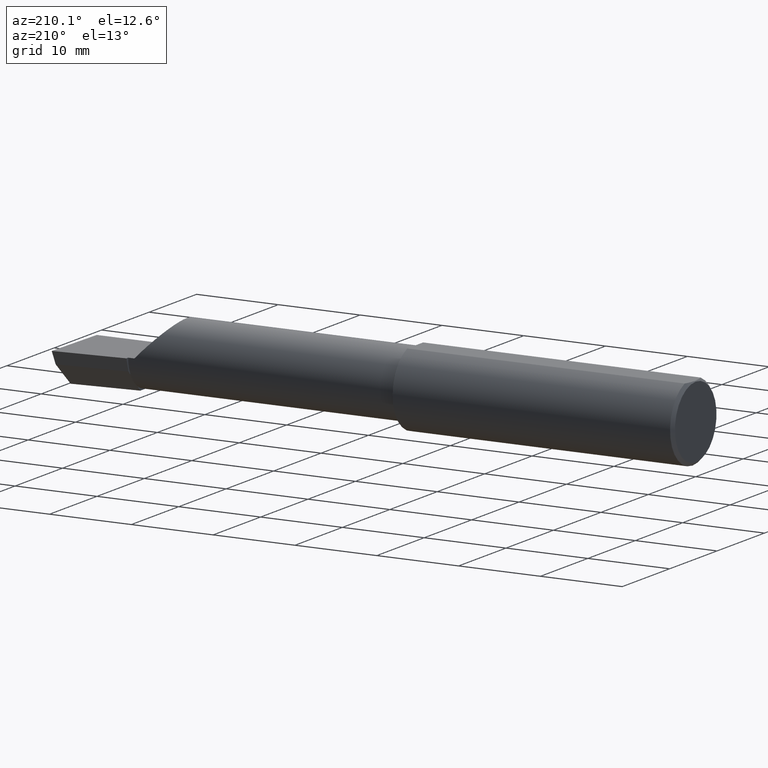
[diagram: clean part render]
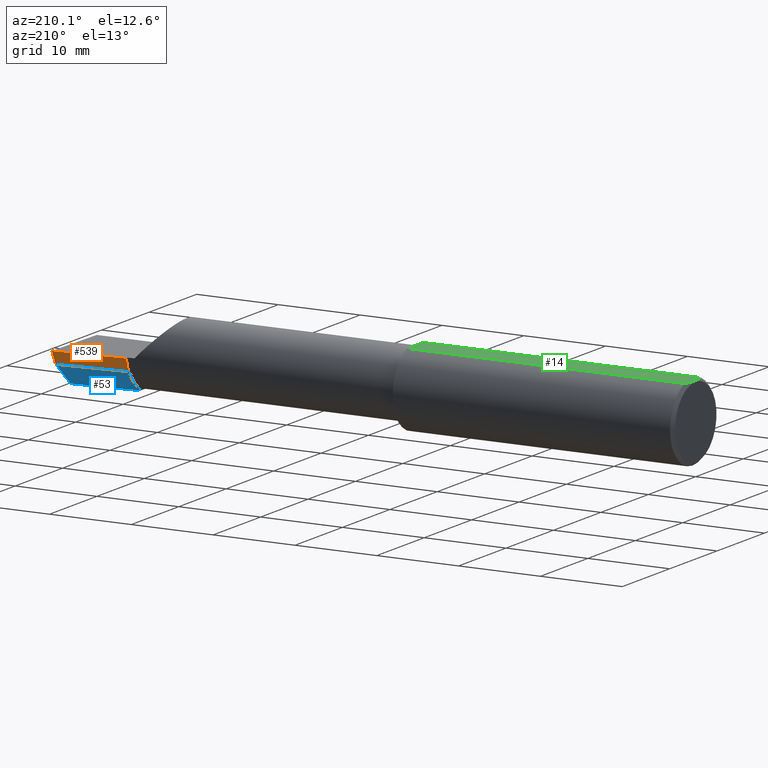
[diagram: same view with three faces highlighted in distinct colors, each labeled with its STEP entity id]
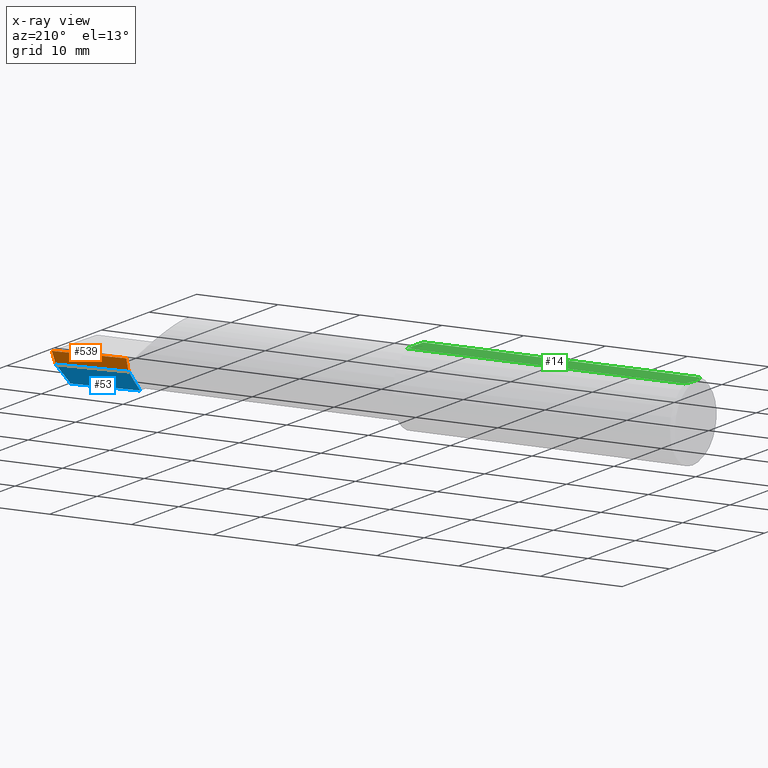
[diagram: x-ray of the same camera — body ghosted, the three highlighted faces saturated]
A machine part, auxiliary view with three faces highlighted in distinct colors.
The next image is the same camera in x-ray (body ghosted, the three faces saturated) — at least one of them is partly hidden behind the body in this view.
Their STEP definitions:

[orange] entity #539 — the highlighted planar face has unit normal (-0.0917, 0.9519, -0.2924).
#16 = LINE ( 'NONE', #605, #473 ) ;
#50 = DIRECTION ( 'NONE',  ( 0.000000000000000000, 0.2936076258024052921, 0.9559260233253797923 ) ) ;
#62 = AXIS2_PLACEMENT_3D ( 'NONE', #296, #342, #50 ) ;
#106 = CARTESIAN_POINT ( 'NONE',  ( 3.011712141217646188, 0.1533490680423130192, -0.06000000000000001166 ) ) ;
#123 = LINE ( 'NONE', #283, #625 ) ;
#131 = ORIENTED_EDGE ( 'NONE', *, *, #312, .F. ) ;
#162 = EDGE_LOOP ( 'NONE', ( #300, #520, #131, #511 ) ) ;
#164 = EDGE_CURVE ( 'NONE', #278, #395, #236, .T. ) ;
#195 = VECTOR ( 'NONE', #299, 39.37007874015748143 ) ;
#236 = LINE ( 'NONE', #386, #195 ) ;
#267 = EDGE_CURVE ( 'NONE', #278, #458, #585, .T. ) ;
#278 = VERTEX_POINT ( 'NONE', #601 ) ;
#283 = CARTESIAN_POINT ( 'NONE',  ( 0.8393181374772692438, -0.03739999999999999575, 2.375616991505620205E-16 ) ) ;
#294 = DIRECTION ( 'NONE',  ( -0.9953961983671800740, -0.09584575252021031166, 0.000000000000000000 ) ) ;
#296 = CARTESIAN_POINT ( 'NONE',  ( 3.009953961983671267, 0.1716084575252020128, -6.829619984160658046E-17 ) ) ;
#299 = DIRECTION ( 'NONE',  ( 0.1240019227989375278, 0.3022330132596638963, 0.9451342385281309433 ) ) ;
#300 = ORIENTED_EDGE ( 'NONE', *, *, #164, .F. ) ;
#312 = EDGE_CURVE ( 'NONE', #574, #458, #16, .T. ) ;
#334 = VECTOR ( 'NONE', #294, 39.37007874015748854 ) ;
#342 = DIRECTION ( 'NONE',  ( -0.09165774897393344500, 0.9519021185660616613, -0.2923717047227296084 ) ) ;
#353 = CARTESIAN_POINT ( 'NONE',  ( 3.000000000000015099, 0.1706500000000298611, 9.270328747797009695E-14 ) ) ;
#386 = CARTESIAN_POINT ( 'NONE',  ( 3.000188977433814408, 0.1711105994646681949, 0.001440373173037210429 ) ) ;
#388 = PLANE ( 'NONE',  #62 ) ;
#395 = VERTEX_POINT ( 'NONE', #353 ) ;
#399 = EDGE_CURVE ( 'NONE', #574, #395, #123, .T. ) ;
#437 = FACE_OUTER_BOUND ( 'NONE', #162, .T. ) ;
#454 = DIRECTION ( 'NONE',  ( -1.671023757235059715E-18, -0.2936076258024052366, -0.9559260233253797923 ) ) ;
#458 = VERTEX_POINT ( 'NONE', #509 ) ;
#473 = VECTOR ( 'NONE', #454, 39.37007874015748854 ) ;
#509 = CARTESIAN_POINT ( 'NONE',  ( 2.659999999999999698, 0.1194830407249524162, -0.06000000000000001166 ) ) ;
#511 = ORIENTED_EDGE ( 'NONE', *, *, #399, .T. ) ;
#519 = DIRECTION ( 'NONE',  ( 0.9953961983671787417, 0.09584575252022456415, -1.409044964823803883E-16 ) ) ;
#520 = ORIENTED_EDGE ( 'NONE', *, *, #267, .T. ) ;
#539 = ADVANCED_FACE ( 'NONE', ( #437 ), #388, .T. ) ;
#574 = VERTEX_POINT ( 'NONE', #578 ) ;
#578 = CARTESIAN_POINT ( 'NONE',  ( 2.659999999999999698, 0.1379117236128416524, 3.521522804332839197E-16 ) ) ;
#585 = LINE ( 'NONE', #106, #334 ) ;
#601 = CARTESIAN_POINT ( 'NONE',  ( 2.992127980275563814, 0.1514633278254527149, -0.06000000000000001166 ) ) ;
#605 = CARTESIAN_POINT ( 'NONE',  ( 2.659999999999999698, 0.1346188438362105610, -0.01072093908174515803 ) ) ;
#625 = VECTOR ( 'NONE', #519, 39.37007874015748143 ) ;

[blue] entity #53 — the highlighted planar face has unit normal (-0.0689, 0.716, -0.6947).
#13 = ORIENTED_EDGE ( 'NONE', *, *, #267, .F. ) ;
#17 = VERTEX_POINT ( 'NONE', #418 ) ;
#36 = EDGE_CURVE ( 'NONE', #611, #228, #567, .T. ) ;
#53 = ADVANCED_FACE ( 'NONE', ( #416 ), #233, .T. ) ;
#54 = LINE ( 'NONE', #293, #522 ) ;
#60 = CARTESIAN_POINT ( 'NONE',  ( 2.659999999999999698, 0.04400172171466197601, -0.1378033461200733056 ) ) ;
#98 = LINE ( 'NONE', #151, #330 ) ;
#103 = DIRECTION ( 'NONE',  ( -3.962974135542377331E-18, -0.6963153109074924352, -0.7177360153954949196 ) ) ;
#106 = CARTESIAN_POINT ( 'NONE',  ( 3.011712141217646188, 0.1533490680423130192, -0.06000000000000001166 ) ) ;
#111 = CARTESIAN_POINT ( 'NONE',  ( 2.659999999999999698, 0.02241901528670508376, -0.1600499999999999701 ) ) ;
#139 = CARTESIAN_POINT ( 'NONE',  ( 3.011712141217646188, 0.1533490680423130192, -0.06000000000000001166 ) ) ;
#148 = VECTOR ( 'NONE', #542, 39.37007874015748143 ) ;
#151 = CARTESIAN_POINT ( 'NONE',  ( 2.992483720199183850, 0.1538199878950237132, -0.05760614975163640822 ) ) ;
#180 = DIRECTION ( 'NONE',  ( -0.06894566448119623936, 0.7160281025913035613, -0.6946583704589934793 ) ) ;
#181 = VECTOR ( 'NONE', #464, 39.37007874015748143 ) ;
#200 = ORIENTED_EDGE ( 'NONE', *, *, #549, .F. ) ;
#207 = ORIENTED_EDGE ( 'NONE', *, *, #219, .F. ) ;
#219 = EDGE_CURVE ( 'NONE', #498, #611, #346, .T. ) ;
#224 = CARTESIAN_POINT ( 'NONE',  ( 2.659999999999999698, 0.1028057716897401719, -0.07719031082256661014 ) ) ;
#228 = VERTEX_POINT ( 'NONE', #111 ) ;
#233 = PLANE ( 'NONE',  #540 ) ;
#239 = DIRECTION ( 'NONE',  ( 0.1053106618241816950, 0.6976485211320171409, 0.7086580314005213044 ) ) ;
#267 = EDGE_CURVE ( 'NONE', #278, #458, #585, .T. ) ;
#272 = VECTOR ( 'NONE', #103, 39.37007874015748143 ) ;
#278 = VERTEX_POINT ( 'NONE', #601 ) ;
#287 = CARTESIAN_POINT ( 'NONE',  ( 2.659999999999999698, 0.1010446066476776428, -0.07900565447499383054 ) ) ;
#293 = CARTESIAN_POINT ( 'NONE',  ( 2.991169618080469661, 0.05430702260361129630, -0.1600499999999999701 ) ) ;
#294 = DIRECTION ( 'NONE',  ( -0.9953961983671800740, -0.09584575252021031166, 0.000000000000000000 ) ) ;
#327 = DIRECTION ( 'NONE',  ( 0.000000000000000000, 0.6963153109074924352, 0.7177360153954948085 ) ) ;
#330 = VECTOR ( 'NONE', #239, 39.37007874015748143 ) ;
#333 = CARTESIAN_POINT ( 'NONE',  ( 2.659999999999999698, 0.1010446066476776428, -0.07900565447499383054 ) ) ;
#334 = VECTOR ( 'NONE', #294, 39.37007874015748854 ) ;
#346 = LINE ( 'NONE', #287, #148 ) ;
#401 = ORIENTED_EDGE ( 'NONE', *, *, #36, .F. ) ;
#416 = FACE_OUTER_BOUND ( 'NONE', #452, .T. ) ;
#418 = CARTESIAN_POINT ( 'NONE',  ( 2.977259974483423832, 0.05296767626088495773, -0.1600499999999999701 ) ) ;
#452 = EDGE_LOOP ( 'NONE', ( #507, #571, #401, #207, #200, #13 ) ) ;
#458 = VERTEX_POINT ( 'NONE', #509 ) ;
#464 = DIRECTION ( 'NONE',  ( -3.962974135542377331E-18, -0.6963153109074924352, -0.7177360153954949196 ) ) ;
#488 = LINE ( 'NONE', #584, #272 ) ;
#498 = VERTEX_POINT ( 'NONE', #224 ) ;
#507 = ORIENTED_EDGE ( 'NONE', *, *, #620, .F. ) ;
#509 = CARTESIAN_POINT ( 'NONE',  ( 2.659999999999999698, 0.1194830407249524162, -0.06000000000000001166 ) ) ;
#522 = VECTOR ( 'NONE', #587, 39.37007874015748854 ) ;
#540 = AXIS2_PLACEMENT_3D ( 'NONE', #139, #180, #327 ) ;
#542 = DIRECTION ( 'NONE',  ( -3.962974135542377331E-18, -0.6963153109074924352, -0.7177360153954949196 ) ) ;
#549 = EDGE_CURVE ( 'NONE', #458, #498, #488, .T. ) ;
#567 = LINE ( 'NONE', #333, #181 ) ;
#571 = ORIENTED_EDGE ( 'NONE', *, *, #602, .T. ) ;
#584 = CARTESIAN_POINT ( 'NONE',  ( 2.659999999999999698, 0.1010446066476776428, -0.07900565447499383054 ) ) ;
#585 = LINE ( 'NONE', #106, #334 ) ;
#587 = DIRECTION ( 'NONE',  ( -0.9953961983671800740, -0.09584575252021031166, 0.000000000000000000 ) ) ;
#601 = CARTESIAN_POINT ( 'NONE',  ( 2.992127980275563814, 0.1514633278254527149, -0.06000000000000001166 ) ) ;
#602 = EDGE_CURVE ( 'NONE', #17, #228, #54, .T. ) ;
#611 = VERTEX_POINT ( 'NONE', #60 ) ;
#620 = EDGE_CURVE ( 'NONE', #17, #278, #98, .T. ) ;

[green] entity #14 — the highlighted planar face has unit normal (0, -0, -1).
#9 = CARTESIAN_POINT ( 'NONE',  ( 0.000000000000000000, 0.06597272163553677404, 0.1753499999999999226 ) ) ;
#10 = CARTESIAN_POINT ( 'NONE',  ( 0.01499999999999997863, -0.06597272163553657975, 0.1753499999999999781 ) ) ;
#14 = ADVANCED_FACE ( 'NONE', ( #616 ), #475, .F. ) ;
#24 = CARTESIAN_POINT ( 'NONE',  ( 0.003000000000000218638, 2.334609607045083916E-17, 0.1753499999999999781 ) ) ;
#34 = B_SPLINE_CURVE_WITH_KNOTS ( 'NONE', 3,
 ( #232, #422, #221, #374, #326, #145 ),
 .UNSPECIFIED., .F., .F.,
 ( 4, 2, 4 ),
 ( 0.001779942938356815062, 0.002629978419973711019, 0.003480013901590607410 ),
 .UNSPECIFIED. ) ;
#55 = LINE ( 'NONE', #624, #525 ) ;
#59 = B_SPLINE_CURVE_WITH_KNOTS ( 'NONE', 3,
 ( #24, #116, #253, #268, #360, #558 ),
 .UNSPECIFIED., .F., .F.,
 ( 4, 2, 4 ),
 ( 0.003480013901590607410, 0.004330767971208085432, 0.005181522040825563453 ),
 .UNSPECIFIED. ) ;
#69 = CARTESIAN_POINT ( 'NONE',  ( 1.350000000000000311, -0.06597272163553659363, 0.1753499999999999781 ) ) ;
#99 = VERTEX_POINT ( 'NONE', #10 ) ;
#116 = CARTESIAN_POINT ( 'NONE',  ( 0.003000000000000172234, 0.01127363201155565098, 0.1753499999999999781 ) ) ;
#118 = ORIENTED_EDGE ( 'NONE', *, *, #595, .F. ) ;
#129 = ORIENTED_EDGE ( 'NONE', *, *, #324, .F. ) ;
#137 = DIRECTION ( 'NONE',  ( -5.691349986800549142E-18, -1.000000000000000000, 1.438723400918613551E-16 ) ) ;
#145 = CARTESIAN_POINT ( 'NONE',  ( 0.003000000000000218638, 2.334609607045083916E-17, 0.1753499999999999781 ) ) ;
#147 = EDGE_LOOP ( 'NONE', ( #504, #118, #129, #559, #250 ) ) ;
#152 = EDGE_CURVE ( 'NONE', #305, #99, #55, .T. ) ;
#187 = CARTESIAN_POINT ( 'NONE',  ( 3.000000000000000444, 0.2373500000000000332, 0.1753499999999999504 ) ) ;
#193 = DIRECTION ( 'NONE',  ( -1.000000000000000000, -0.000000000000000000, -0.000000000000000000 ) ) ;
#201 = DIRECTION ( 'NONE',  ( 1.000000000000000000, 0.000000000000000000, 0.000000000000000000 ) ) ;
#221 = CARTESIAN_POINT ( 'NONE',  ( 0.008227791779583793277, -0.04447712204611815184, 0.1753499999999999781 ) ) ;
#232 = CARTESIAN_POINT ( 'NONE',  ( 0.01499999999999997863, -0.06597272163553657975, 0.1753499999999999781 ) ) ;
#250 = ORIENTED_EDGE ( 'NONE', *, *, #152, .F. ) ;
#253 = CARTESIAN_POINT ( 'NONE',  ( 0.004115035183746283340, 0.02255629470626750385, 0.1753499999999999781 ) ) ;
#268 = CARTESIAN_POINT ( 'NONE',  ( 0.008244775919947433529, 0.04453482769755864185, 0.1753499999999999504 ) ) ;
#282 = VECTOR ( 'NONE', #201, 39.37007874015748143 ) ;
#288 = VECTOR ( 'NONE', #137, 39.37007874015748143 ) ;
#305 = VERTEX_POINT ( 'NONE', #69 ) ;
#310 = CARTESIAN_POINT ( 'NONE',  ( 0.01499999999999999424, 0.06597272163553677404, 0.1753499999999999226 ) ) ;
#324 = EDGE_CURVE ( 'NONE', #398, #387, #59, .T. ) ;
#326 = CARTESIAN_POINT ( 'NONE',  ( 0.003000000000000171800, -0.01126410975715119375, 0.1753500000000000059 ) ) ;
#360 = CARTESIAN_POINT ( 'NONE',  ( 0.01125230581755091823, 0.05532998191409932431, 0.1753500000000000059 ) ) ;
#374 = CARTESIAN_POINT ( 'NONE',  ( 0.004093196532652217806, -0.02240707710020815174, 0.1753499999999999504 ) ) ;
#375 = DIRECTION ( 'NONE',  ( 0.000000000000000000, 1.000000000000000000, -1.438723400918613551E-16 ) ) ;
#387 = VERTEX_POINT ( 'NONE', #310 ) ;
#398 = VERTEX_POINT ( 'NONE', #551 ) ;
#422 = CARTESIAN_POINT ( 'NONE',  ( 0.01128414053810044074, -0.05542038647445821781, 0.1753499999999999781 ) ) ;
#449 = EDGE_CURVE ( 'NONE', #99, #398, #34, .T. ) ;
#463 = CARTESIAN_POINT ( 'NONE',  ( 1.350000000000000311, 0.2373500000000000332, 0.1753499999999999504 ) ) ;
#475 = PLANE ( 'NONE',  #531 ) ;
#482 = CARTESIAN_POINT ( 'NONE',  ( 1.350000000000000311, 0.06597272163553680180, 0.1753499999999999781 ) ) ;
#497 = EDGE_CURVE ( 'NONE', #543, #305, #562, .T. ) ;
#504 = ORIENTED_EDGE ( 'NONE', *, *, #497, .F. ) ;
#524 = LINE ( 'NONE', #9, #282 ) ;
#525 = VECTOR ( 'NONE', #193, 39.37007874015748143 ) ;
#531 = AXIS2_PLACEMENT_3D ( 'NONE', #187, #569, #375 ) ;
#543 = VERTEX_POINT ( 'NONE', #482 ) ;
#551 = CARTESIAN_POINT ( 'NONE',  ( 0.003000000000000218638, 2.334609607045083916E-17, 0.1753499999999999781 ) ) ;
#558 = CARTESIAN_POINT ( 'NONE',  ( 0.01499999999999999424, 0.06597272163553677404, 0.1753499999999999226 ) ) ;
#559 = ORIENTED_EDGE ( 'NONE', *, *, #449, .F. ) ;
#562 = LINE ( 'NONE', #463, #288 ) ;
#569 = DIRECTION ( 'NONE',  ( 0.000000000000000000, -1.438723400918613551E-16, -1.000000000000000000 ) ) ;
#595 = EDGE_CURVE ( 'NONE', #387, #543, #524, .T. ) ;
#616 = FACE_OUTER_BOUND ( 'NONE', #147, .T. ) ;
#624 = CARTESIAN_POINT ( 'NONE',  ( 0.000000000000000000, -0.06597272163553671853, 0.1753499999999999226 ) ) ;